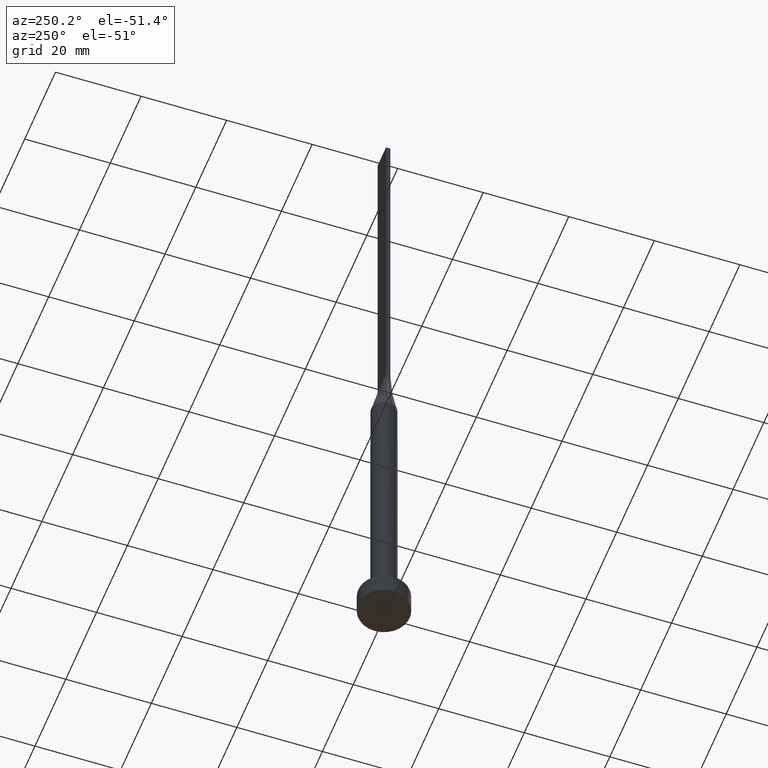
[diagram: clean part render]
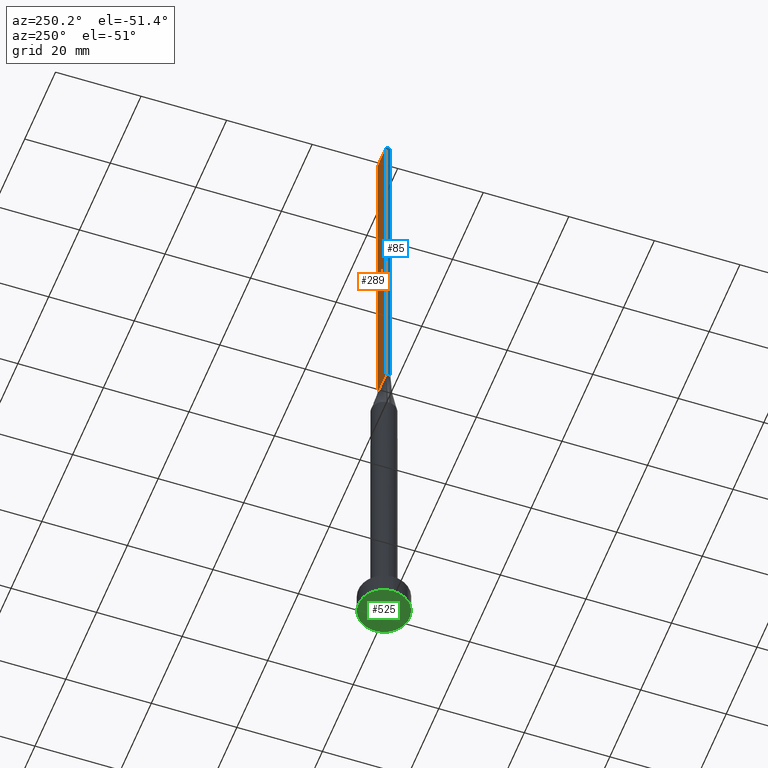
[diagram: same view with three faces highlighted in distinct colors, each labeled with its STEP entity id]
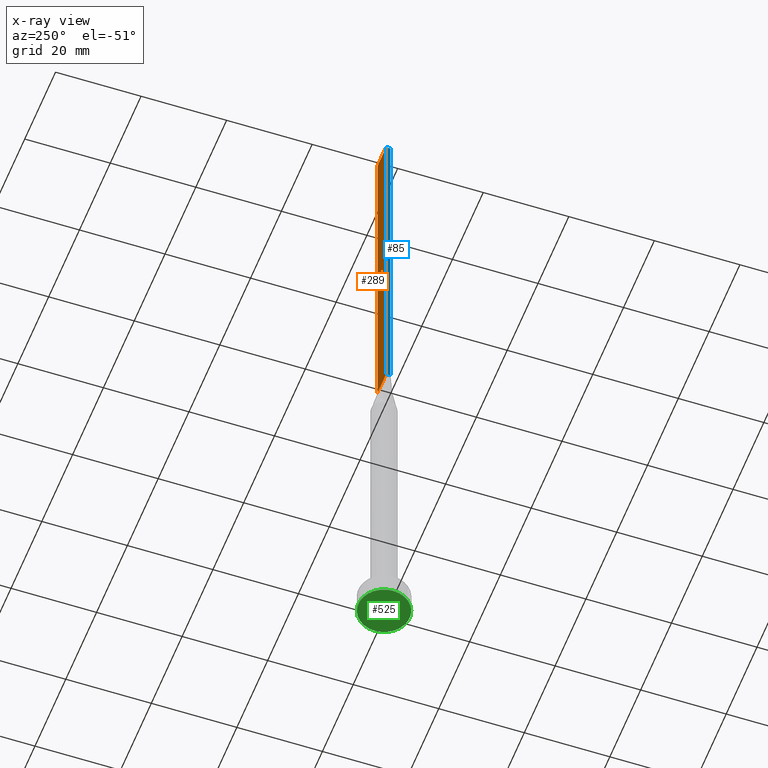
[diagram: x-ray of the same camera — body ghosted, the three highlighted faces saturated]
A machine part, auxiliary view with three faces highlighted in distinct colors.
The next image is the same camera in x-ray (body ghosted, the three faces saturated) — at least one of them is partly hidden behind the body in this view.
Their STEP definitions:

[orange] entity #289 — the highlighted planar face has unit normal (0, -1, 0).
#10 = FACE_OUTER_BOUND ( 'NONE', #406, .T. ) ;
#56 = CARTESIAN_POINT ( 'NONE',  ( -2.750000000000000000, 0.5000000000000002220, 160.0000000000000000 ) ) ;
#59 = CARTESIAN_POINT ( 'NONE',  ( 2.750000000000000000, 0.5000000000000002220, 160.0000000000000000 ) ) ;
#61 = VERTEX_POINT ( 'NONE', #312 ) ;
#72 = LINE ( 'NONE', #125, #371 ) ;
#95 = ORIENTED_EDGE ( 'NONE', *, *, #131, .T. ) ;
#125 = CARTESIAN_POINT ( 'NONE',  ( 2.750000000000000000, 0.5000000000000002220, 160.0000000000000000 ) ) ;
#131 = EDGE_CURVE ( 'NONE', #555, #225, #396, .T. ) ;
#175 = CARTESIAN_POINT ( 'NONE',  ( 2.750000000000000000, 0.5000000000000002220, 160.0000000000000000 ) ) ;
#189 = EDGE_CURVE ( 'NONE', #412, #555, #72, .T. ) ;
#203 = EDGE_CURVE ( 'NONE', #412, #61, #433, .T. ) ;
#221 = DIRECTION ( 'NONE',  ( -1.000000000000000000, -0.000000000000000000, -0.000000000000000000 ) ) ;
#225 = VERTEX_POINT ( 'NONE', #291 ) ;
#273 = VECTOR ( 'NONE', #477, 1000.000000000000000 ) ;
#284 = AXIS2_PLACEMENT_3D ( 'NONE', #175, #507, #545 ) ;
#289 = ADVANCED_FACE ( 'NONE', ( #10 ), #317, .F. ) ;
#291 = CARTESIAN_POINT ( 'NONE',  ( -2.750000000000000000, 0.5000000000000002220, 80.00000000000000000 ) ) ;
#296 = CARTESIAN_POINT ( 'NONE',  ( 2.750000000000000000, 0.5000000000000002220, 160.0000000000000000 ) ) ;
#309 = EDGE_CURVE ( 'NONE', #61, #225, #458, .T. ) ;
#312 = CARTESIAN_POINT ( 'NONE',  ( -2.750000000000000000, 0.5000000000000002220, 160.0000000000000000 ) ) ;
#314 = ORIENTED_EDGE ( 'NONE', *, *, #189, .T. ) ;
#317 = PLANE ( 'NONE',  #284 ) ;
#355 = CARTESIAN_POINT ( 'NONE',  ( -2.750000000000000000, 0.5000000000000002220, 80.00000000000000000 ) ) ;
#371 = VECTOR ( 'NONE', #570, 1000.000000000000000 ) ;
#373 = ORIENTED_EDGE ( 'NONE', *, *, #203, .F. ) ;
#378 = ORIENTED_EDGE ( 'NONE', *, *, #309, .F. ) ;
#396 = LINE ( 'NONE', #355, #454 ) ;
#406 = EDGE_LOOP ( 'NONE', ( #95, #378, #373, #314 ) ) ;
#412 = VERTEX_POINT ( 'NONE', #59 ) ;
#428 = CARTESIAN_POINT ( 'NONE',  ( 2.750000000000000000, 0.5000000000000002220, 80.00000000000000000 ) ) ;
#433 = LINE ( 'NONE', #296, #273 ) ;
#449 = DIRECTION ( 'NONE',  ( -0.000000000000000000, -0.000000000000000000, -1.000000000000000000 ) ) ;
#454 = VECTOR ( 'NONE', #221, 1000.000000000000000 ) ;
#458 = LINE ( 'NONE', #56, #533 ) ;
#477 = DIRECTION ( 'NONE',  ( -1.000000000000000000, 0.000000000000000000, 0.000000000000000000 ) ) ;
#507 = DIRECTION ( 'NONE',  ( 0.000000000000000000, -1.000000000000000000, 0.000000000000000000 ) ) ;
#533 = VECTOR ( 'NONE', #449, 1000.000000000000000 ) ;
#545 = DIRECTION ( 'NONE',  ( 0.000000000000000000, -0.000000000000000000, -1.000000000000000000 ) ) ;
#555 = VERTEX_POINT ( 'NONE', #428 ) ;
#570 = DIRECTION ( 'NONE',  ( -0.000000000000000000, -0.000000000000000000, -1.000000000000000000 ) ) ;

[blue] entity #85 — the highlighted planar face has unit normal (1, 0, -0).
#35 = CARTESIAN_POINT ( 'NONE',  ( -2.750000000000000000, 0.5000000000000002220, 80.00000000000000000 ) ) ;
#52 = PLANE ( 'NONE',  #145 ) ;
#54 = EDGE_CURVE ( 'NONE', #456, #191, #199, .T. ) ;
#56 = CARTESIAN_POINT ( 'NONE',  ( -2.750000000000000000, 0.5000000000000002220, 160.0000000000000000 ) ) ;
#58 = VECTOR ( 'NONE', #498, 1000.000000000000000 ) ;
#61 = VERTEX_POINT ( 'NONE', #312 ) ;
#79 = VECTOR ( 'NONE', #432, 1000.000000000000000 ) ;
#85 = ADVANCED_FACE ( 'NONE', ( #506 ), #52, .F. ) ;
#93 = CARTESIAN_POINT ( 'NONE',  ( -2.750000000000000000, -0.4999999999999994449, 160.0000000000000000 ) ) ;
#105 = EDGE_CURVE ( 'NONE', #61, #456, #271, .T. ) ;
#136 = ORIENTED_EDGE ( 'NONE', *, *, #54, .F. ) ;
#138 = DIRECTION ( 'NONE',  ( -0.000000000000000000, -0.000000000000000000, -1.000000000000000000 ) ) ;
#145 = AXIS2_PLACEMENT_3D ( 'NONE', #501, #224, #403 ) ;
#191 = VERTEX_POINT ( 'NONE', #349 ) ;
#199 = LINE ( 'NONE', #354, #329 ) ;
#220 = ORIENTED_EDGE ( 'NONE', *, *, #227, .T. ) ;
#224 = DIRECTION ( 'NONE',  ( 1.000000000000000000, 0.000000000000000000, -0.000000000000000000 ) ) ;
#225 = VERTEX_POINT ( 'NONE', #291 ) ;
#227 = EDGE_CURVE ( 'NONE', #225, #191, #246, .T. ) ;
#238 = ORIENTED_EDGE ( 'NONE', *, *, #309, .T. ) ;
#246 = LINE ( 'NONE', #35, #79 ) ;
#262 = CARTESIAN_POINT ( 'NONE',  ( -2.750000000000000000, 0.5000000000000002220, 160.0000000000000000 ) ) ;
#271 = LINE ( 'NONE', #262, #58 ) ;
#291 = CARTESIAN_POINT ( 'NONE',  ( -2.750000000000000000, 0.5000000000000002220, 80.00000000000000000 ) ) ;
#309 = EDGE_CURVE ( 'NONE', #61, #225, #458, .T. ) ;
#312 = CARTESIAN_POINT ( 'NONE',  ( -2.750000000000000000, 0.5000000000000002220, 160.0000000000000000 ) ) ;
#329 = VECTOR ( 'NONE', #138, 1000.000000000000000 ) ;
#349 = CARTESIAN_POINT ( 'NONE',  ( -2.750000000000000000, -0.4999999999999994449, 80.00000000000000000 ) ) ;
#354 = CARTESIAN_POINT ( 'NONE',  ( -2.750000000000000000, -0.4999999999999994449, 160.0000000000000000 ) ) ;
#356 = ORIENTED_EDGE ( 'NONE', *, *, #105, .F. ) ;
#403 = DIRECTION ( 'NONE',  ( -0.000000000000000000, 0.000000000000000000, -1.000000000000000000 ) ) ;
#409 = EDGE_LOOP ( 'NONE', ( #220, #136, #356, #238 ) ) ;
#432 = DIRECTION ( 'NONE',  ( 0.000000000000000000, -1.000000000000000000, 0.000000000000000000 ) ) ;
#449 = DIRECTION ( 'NONE',  ( -0.000000000000000000, -0.000000000000000000, -1.000000000000000000 ) ) ;
#456 = VERTEX_POINT ( 'NONE', #93 ) ;
#458 = LINE ( 'NONE', #56, #533 ) ;
#498 = DIRECTION ( 'NONE',  ( 0.000000000000000000, -1.000000000000000000, 0.000000000000000000 ) ) ;
#501 = CARTESIAN_POINT ( 'NONE',  ( -2.750000000000000000, 0.5000000000000002220, 160.0000000000000000 ) ) ;
#506 = FACE_OUTER_BOUND ( 'NONE', #409, .T. ) ;
#533 = VECTOR ( 'NONE', #449, 1000.000000000000000 ) ;

[green] entity #525 — the highlighted planar face has unit normal (0, 0, 1).
#22 = EDGE_CURVE ( 'NONE', #32, #74, #401, .T. ) ;
#32 = VERTEX_POINT ( 'NONE', #484 ) ;
#66 = CARTESIAN_POINT ( 'NONE',  ( 0.000000000000000000, 0.000000000000000000, 0.000000000000000000 ) ) ;
#70 = DIRECTION ( 'NONE',  ( 1.000000000000000000, 0.000000000000000000, 0.000000000000000000 ) ) ;
#74 = VERTEX_POINT ( 'NONE', #579 ) ;
#94 = DIRECTION ( 'NONE',  ( 0.000000000000000000, 0.000000000000000000, 1.000000000000000000 ) ) ;
#96 = EDGE_CURVE ( 'NONE', #74, #32, #551, .T. ) ;
#103 = DIRECTION ( 'NONE',  ( 1.000000000000000000, 0.000000000000000000, -0.000000000000000000 ) ) ;
#123 = ORIENTED_EDGE ( 'NONE', *, *, #96, .F. ) ;
#148 = PLANE ( 'NONE',  #331 ) ;
#204 = AXIS2_PLACEMENT_3D ( 'NONE', #307, #94, #363 ) ;
#267 = EDGE_LOOP ( 'NONE', ( #123, #338 ) ) ;
#282 = CARTESIAN_POINT ( 'NONE',  ( 0.000000000000000000, 0.000000000000000000, 0.000000000000000000 ) ) ;
#307 = CARTESIAN_POINT ( 'NONE',  ( 0.000000000000000000, 0.000000000000000000, 0.000000000000000000 ) ) ;
#331 = AXIS2_PLACEMENT_3D ( 'NONE', #282, #462, #103 ) ;
#338 = ORIENTED_EDGE ( 'NONE', *, *, #22, .F. ) ;
#363 = DIRECTION ( 'NONE',  ( 1.000000000000000000, 0.000000000000000000, 0.000000000000000000 ) ) ;
#401 = CIRCLE ( 'NONE', #481, 6.000000000000000888 ) ;
#462 = DIRECTION ( 'NONE',  ( 0.000000000000000000, 0.000000000000000000, 1.000000000000000000 ) ) ;
#471 = DIRECTION ( 'NONE',  ( 0.000000000000000000, 0.000000000000000000, 1.000000000000000000 ) ) ;
#481 = AXIS2_PLACEMENT_3D ( 'NONE', #66, #471, #70 ) ;
#484 = CARTESIAN_POINT ( 'NONE',  ( 6.000000000000000888, 7.347880794884120722E-16, 0.000000000000000000 ) ) ;
#525 = ADVANCED_FACE ( 'NONE', ( #554 ), #148, .F. ) ;
#551 = CIRCLE ( 'NONE', #204, 6.000000000000000888 ) ;
#554 = FACE_OUTER_BOUND ( 'NONE', #267, .T. ) ;
#579 = CARTESIAN_POINT ( 'NONE',  ( -6.000000000000000888, 0.000000000000000000, 0.000000000000000000 ) ) ;